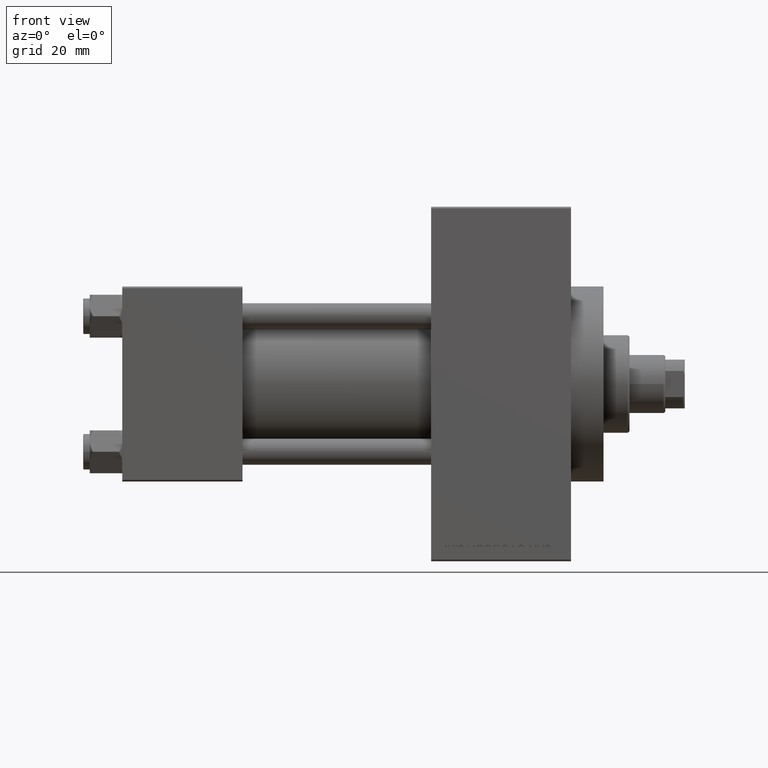
[diagram: clean part render]
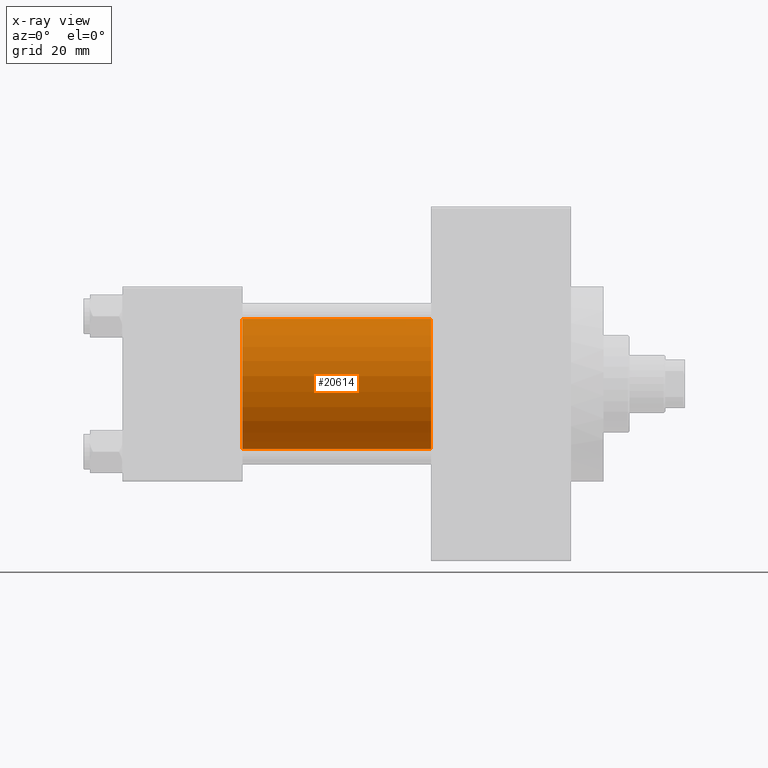
[diagram: x-ray — body ghosted, one internal face saturated and labeled with its STEP entity id]
A machine part, front view, then the same camera in x-ray: the body is ghosted and one INTERNAL B-rep face — a face not visible from any outside direction — is saturated and labeled: STEP entity #20614.
In plain terms, the highlighted cylindrical surface (partial cylindrical patch) has radius 20 mm, axis along (-1, -0, -0).
Its self-contained STEP definition (entity closure, byte-faithful):
#435 = VERTEX_POINT ( 'NONE', #45592 ) ;
#989 = DIRECTION ( 'NONE',  ( -1.000000000000000000, -0.000000000000000000, -0.000000000000000000 ) ) ;
#1264 = VECTOR ( 'NONE', #989, 1000.000000000000000 ) ;
#1291 = CARTESIAN_POINT ( 'NONE',  ( 37.00000000000000000, -2.602085213965210642E-15, 20.00000000000000000 ) ) ;
#3951 = CARTESIAN_POINT ( 'NONE',  ( 95.00000000000000000, -2.602085213965210642E-15, 20.00000000000000000 ) ) ;
#4070 = CARTESIAN_POINT ( 'NONE',  ( 95.00000000000000000, -2.602085213965210642E-15, 20.00000000000000000 ) ) ;
#4707 = LINE ( 'NONE', #24496, #1264 ) ;
#5071 = CIRCLE ( 'NONE', #24837, 20.00000000000000000 ) ;
#5329 = DIRECTION ( 'NONE',  ( 1.000000000000000000, 0.000000000000000000, 0.000000000000000000 ) ) ;
#6876 = EDGE_CURVE ( 'NONE', #435, #48920, #4707, .T. ) ;
#8513 = CARTESIAN_POINT ( 'NONE',  ( 95.00000000000000000, -2.602085213965210642E-15, 0.000000000000000000 ) ) ;
#8880 = CARTESIAN_POINT ( 'NONE',  ( 37.00000000000000000, -1.527916156705046464E-16, -20.00000000000000000 ) ) ;
#9400 = EDGE_LOOP ( 'NONE', ( #16390, #17349, #40821, #42785 ) ) ;
#9891 = EDGE_CURVE ( 'NONE', #35573, #38441, #29947, .T. ) ;
#10585 = DIRECTION ( 'NONE',  ( 1.000000000000000000, 0.000000000000000000, 0.000000000000000000 ) ) ;
#12230 = FACE_OUTER_BOUND ( 'NONE', #9400, .T. ) ;
#16390 = ORIENTED_EDGE ( 'NONE', *, *, #25419, .T. ) ;
#17349 = ORIENTED_EDGE ( 'NONE', *, *, #6876, .T. ) ;
#20444 = DIRECTION ( 'NONE',  ( 0.000000000000000000, 0.000000000000000000, -1.000000000000000000 ) ) ;
#20614 = ADVANCED_FACE ( 'NONE', ( #12230 ), #27321, .F. ) ;
#23614 = DIRECTION ( 'NONE',  ( -1.000000000000000000, -0.000000000000000000, -0.000000000000000000 ) ) ;
#24496 = CARTESIAN_POINT ( 'NONE',  ( 95.00000000000000000, -1.527916156705046464E-16, -20.00000000000000000 ) ) ;
#24837 = AXIS2_PLACEMENT_3D ( 'NONE', #39255, #5329, #20444 ) ;
#25419 = EDGE_CURVE ( 'NONE', #35573, #435, #5071, .T. ) ;
#27321 = CYLINDRICAL_SURFACE ( 'NONE', #48512, 20.00000000000000000 ) ;
#29947 = LINE ( 'NONE', #3951, #44238 ) ;
#31028 = CIRCLE ( 'NONE', #37349, 20.00000000000000000 ) ;
#35573 = VERTEX_POINT ( 'NONE', #4070 ) ;
#37073 = DIRECTION ( 'NONE',  ( 0.000000000000000000, 0.000000000000000000, -1.000000000000000000 ) ) ;
#37349 = AXIS2_PLACEMENT_3D ( 'NONE', #41533, #10585, #37073 ) ;
#38441 = VERTEX_POINT ( 'NONE', #1291 ) ;
#38708 = DIRECTION ( 'NONE',  ( 0.000000000000000000, 0.000000000000000000, 1.000000000000000000 ) ) ;
#39255 = CARTESIAN_POINT ( 'NONE',  ( 95.00000000000000000, -2.602085213965210642E-15, 0.000000000000000000 ) ) ;
#40821 = ORIENTED_EDGE ( 'NONE', *, *, #44486, .F. ) ;
#41350 = DIRECTION ( 'NONE',  ( -1.000000000000000000, -0.000000000000000000, -0.000000000000000000 ) ) ;
#41533 = CARTESIAN_POINT ( 'NONE',  ( 37.00000000000000000, -2.602085213965210642E-15, 0.000000000000000000 ) ) ;
#42785 = ORIENTED_EDGE ( 'NONE', *, *, #9891, .F. ) ;
#44238 = VECTOR ( 'NONE', #41350, 1000.000000000000000 ) ;
#44486 = EDGE_CURVE ( 'NONE', #38441, #48920, #31028, .T. ) ;
#45592 = CARTESIAN_POINT ( 'NONE',  ( 95.00000000000000000, -1.527916156705046464E-16, -20.00000000000000000 ) ) ;
#48512 = AXIS2_PLACEMENT_3D ( 'NONE', #8513, #23614, #38708 ) ;
#48920 = VERTEX_POINT ( 'NONE', #8880 ) ;